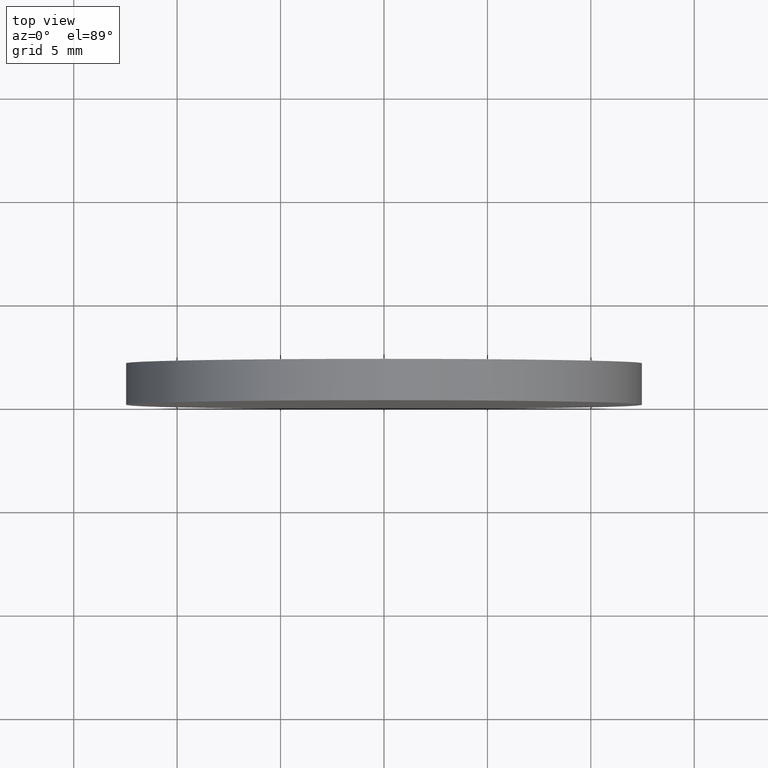
[diagram: clean part render]
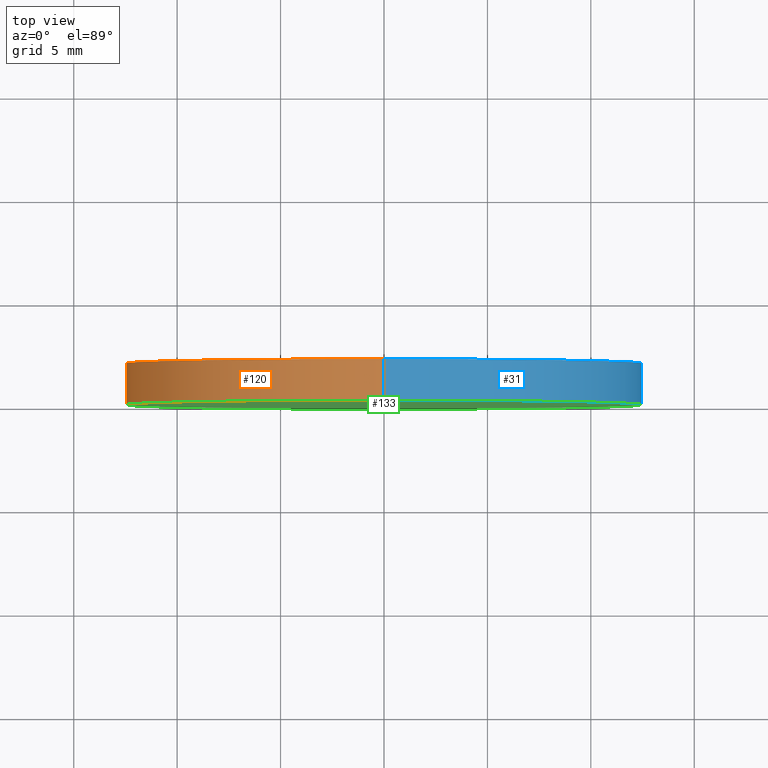
[diagram: same view with three faces highlighted in distinct colors, each labeled with its STEP entity id]
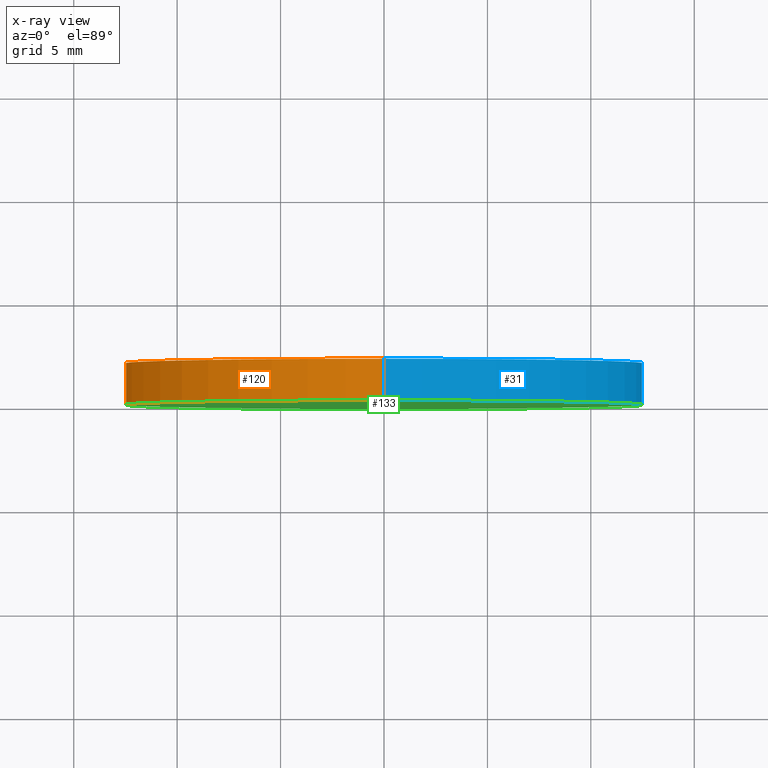
[diagram: x-ray of the same camera — body ghosted, the three highlighted faces saturated]
A machine part, top view with three faces highlighted in distinct colors.
The next image is the same camera in x-ray (body ghosted, the three faces saturated) — at least one of them is partly hidden behind the body in this view.
Their STEP definitions:

[orange] entity #120 — the highlighted cylindrical surface (partial cylindrical patch) has radius 12.5 mm, axis along (-0, -1, -0).
#1 = FACE_OUTER_BOUND ( 'NONE', #89, .T. ) ;
#2 = DIRECTION ( 'NONE',  ( 0.0000000000000000000, 1.000000000000000000, 0.0000000000000000000 ) ) ;
#4 = VERTEX_POINT ( 'NONE', #20 ) ;
#12 = ORIENTED_EDGE ( 'NONE', *, *, #29, .T. ) ;
#13 = DIRECTION ( 'NONE',  ( -0.0000000000000000000, -1.000000000000000000, -0.0000000000000000000 ) ) ;
#19 = EDGE_CURVE ( 'NONE', #124, #113, #129, .T. ) ;
#20 = CARTESIAN_POINT ( 'NONE',  ( 0.0000000000000000000, 0.0000000000000000000, -12.50000000000000000 ) ) ;
#21 = DIRECTION ( 'NONE',  ( 0.0000000000000000000, 0.0000000000000000000, 1.000000000000000000 ) ) ;
#27 = CARTESIAN_POINT ( 'NONE',  ( 1.530808498934191500E-015, 2.000000000000000000, 12.50000000000000000 ) ) ;
#29 = EDGE_CURVE ( 'NONE', #4, #92, #69, .T. ) ;
#32 = DIRECTION ( 'NONE',  ( 0.0000000000000000000, 0.0000000000000000000, -1.000000000000000000 ) ) ;
#42 = CARTESIAN_POINT ( 'NONE',  ( 1.530808498934191500E-015, 0.0000000000000000000, 12.50000000000000000 ) ) ;
#49 = LINE ( 'NONE', #55, #53 ) ;
#53 = VECTOR ( 'NONE', #57, 1000.000000000000000 ) ;
#55 = CARTESIAN_POINT ( 'NONE',  ( 0.0000000000000000000, 2.000000000000000000, -12.50000000000000000 ) ) ;
#56 = CARTESIAN_POINT ( 'NONE',  ( 1.530808498934191500E-015, 2.000000000000000000, 12.50000000000000000 ) ) ;
#57 = DIRECTION ( 'NONE',  ( -0.0000000000000000000, -1.000000000000000000, -0.0000000000000000000 ) ) ;
#59 = ORIENTED_EDGE ( 'NONE', *, *, #108, .T. ) ;
#63 = AXIS2_PLACEMENT_3D ( 'NONE', #77, #2, #65 ) ;
#64 = DIRECTION ( 'NONE',  ( -0.0000000000000000000, -1.000000000000000000, -0.0000000000000000000 ) ) ;
#65 = DIRECTION ( 'NONE',  ( 0.0000000000000000000, 0.0000000000000000000, 1.000000000000000000 ) ) ;
#66 = CYLINDRICAL_SURFACE ( 'NONE', #140, 12.50000000000000000 ) ;
#69 = CIRCLE ( 'NONE', #63, 12.50000000000000000 ) ;
#70 = AXIS2_PLACEMENT_3D ( 'NONE', #84, #94, #21 ) ;
#74 = EDGE_CURVE ( 'NONE', #113, #92, #138, .T. ) ;
#77 = CARTESIAN_POINT ( 'NONE',  ( 0.0000000000000000000, 0.0000000000000000000, 0.0000000000000000000 ) ) ;
#84 = CARTESIAN_POINT ( 'NONE',  ( 0.0000000000000000000, 2.000000000000000000, 0.0000000000000000000 ) ) ;
#89 = EDGE_LOOP ( 'NONE', ( #96, #125, #59, #12 ) ) ;
#92 = VERTEX_POINT ( 'NONE', #42 ) ;
#94 = DIRECTION ( 'NONE',  ( 0.0000000000000000000, 1.000000000000000000, 0.0000000000000000000 ) ) ;
#96 = ORIENTED_EDGE ( 'NONE', *, *, #74, .F. ) ;
#100 = CARTESIAN_POINT ( 'NONE',  ( 0.0000000000000000000, 2.000000000000000000, -12.50000000000000000 ) ) ;
#101 = VECTOR ( 'NONE', #64, 1000.000000000000000 ) ;
#107 = CARTESIAN_POINT ( 'NONE',  ( 0.0000000000000000000, 2.000000000000000000, 0.0000000000000000000 ) ) ;
#108 = EDGE_CURVE ( 'NONE', #124, #4, #49, .T. ) ;
#113 = VERTEX_POINT ( 'NONE', #27 ) ;
#120 = ADVANCED_FACE ( 'NONE', ( #1 ), #66, .T. ) ;
#124 = VERTEX_POINT ( 'NONE', #100 ) ;
#125 = ORIENTED_EDGE ( 'NONE', *, *, #19, .F. ) ;
#129 = CIRCLE ( 'NONE', #70, 12.50000000000000000 ) ;
#138 = LINE ( 'NONE', #56, #101 ) ;
#140 = AXIS2_PLACEMENT_3D ( 'NONE', #107, #13, #32 ) ;

[blue] entity #31 — the highlighted cylindrical surface (partial cylindrical patch) has radius 12.5 mm, axis along (-0, -1, -0).
#4 = VERTEX_POINT ( 'NONE', #20 ) ;
#8 = ORIENTED_EDGE ( 'NONE', *, *, #108, .F. ) ;
#11 = DIRECTION ( 'NONE',  ( 0.0000000000000000000, 0.0000000000000000000, -1.000000000000000000 ) ) ;
#16 = CIRCLE ( 'NONE', #128, 12.50000000000000000 ) ;
#20 = CARTESIAN_POINT ( 'NONE',  ( 0.0000000000000000000, 0.0000000000000000000, -12.50000000000000000 ) ) ;
#24 = DIRECTION ( 'NONE',  ( 0.0000000000000000000, 0.0000000000000000000, 1.000000000000000000 ) ) ;
#27 = CARTESIAN_POINT ( 'NONE',  ( 1.530808498934191500E-015, 2.000000000000000000, 12.50000000000000000 ) ) ;
#31 = ADVANCED_FACE ( 'NONE', ( #38 ), #132, .T. ) ;
#35 = CARTESIAN_POINT ( 'NONE',  ( 0.0000000000000000000, 0.0000000000000000000, 0.0000000000000000000 ) ) ;
#36 = EDGE_LOOP ( 'NONE', ( #51, #91, #46, #8 ) ) ;
#38 = FACE_OUTER_BOUND ( 'NONE', #36, .T. ) ;
#39 = AXIS2_PLACEMENT_3D ( 'NONE', #87, #126, #11 ) ;
#42 = CARTESIAN_POINT ( 'NONE',  ( 1.530808498934191500E-015, 0.0000000000000000000, 12.50000000000000000 ) ) ;
#45 = CARTESIAN_POINT ( 'NONE',  ( 0.0000000000000000000, 2.000000000000000000, 0.0000000000000000000 ) ) ;
#46 = ORIENTED_EDGE ( 'NONE', *, *, #139, .T. ) ;
#47 = DIRECTION ( 'NONE',  ( 0.0000000000000000000, 0.0000000000000000000, 1.000000000000000000 ) ) ;
#49 = LINE ( 'NONE', #55, #53 ) ;
#51 = ORIENTED_EDGE ( 'NONE', *, *, #103, .F. ) ;
#53 = VECTOR ( 'NONE', #57, 1000.000000000000000 ) ;
#55 = CARTESIAN_POINT ( 'NONE',  ( 0.0000000000000000000, 2.000000000000000000, -12.50000000000000000 ) ) ;
#56 = CARTESIAN_POINT ( 'NONE',  ( 1.530808498934191500E-015, 2.000000000000000000, 12.50000000000000000 ) ) ;
#57 = DIRECTION ( 'NONE',  ( -0.0000000000000000000, -1.000000000000000000, -0.0000000000000000000 ) ) ;
#64 = DIRECTION ( 'NONE',  ( -0.0000000000000000000, -1.000000000000000000, -0.0000000000000000000 ) ) ;
#74 = EDGE_CURVE ( 'NONE', #113, #92, #138, .T. ) ;
#82 = CIRCLE ( 'NONE', #112, 12.50000000000000000 ) ;
#87 = CARTESIAN_POINT ( 'NONE',  ( 0.0000000000000000000, 2.000000000000000000, 0.0000000000000000000 ) ) ;
#91 = ORIENTED_EDGE ( 'NONE', *, *, #74, .T. ) ;
#92 = VERTEX_POINT ( 'NONE', #42 ) ;
#100 = CARTESIAN_POINT ( 'NONE',  ( 0.0000000000000000000, 2.000000000000000000, -12.50000000000000000 ) ) ;
#101 = VECTOR ( 'NONE', #64, 1000.000000000000000 ) ;
#103 = EDGE_CURVE ( 'NONE', #113, #124, #82, .T. ) ;
#108 = EDGE_CURVE ( 'NONE', #124, #4, #49, .T. ) ;
#110 = DIRECTION ( 'NONE',  ( 0.0000000000000000000, 1.000000000000000000, 0.0000000000000000000 ) ) ;
#112 = AXIS2_PLACEMENT_3D ( 'NONE', #45, #118, #47 ) ;
#113 = VERTEX_POINT ( 'NONE', #27 ) ;
#118 = DIRECTION ( 'NONE',  ( 0.0000000000000000000, 1.000000000000000000, 0.0000000000000000000 ) ) ;
#124 = VERTEX_POINT ( 'NONE', #100 ) ;
#126 = DIRECTION ( 'NONE',  ( -0.0000000000000000000, -1.000000000000000000, -0.0000000000000000000 ) ) ;
#128 = AXIS2_PLACEMENT_3D ( 'NONE', #35, #110, #24 ) ;
#132 = CYLINDRICAL_SURFACE ( 'NONE', #39, 12.50000000000000000 ) ;
#138 = LINE ( 'NONE', #56, #101 ) ;
#139 = EDGE_CURVE ( 'NONE', #92, #4, #16, .T. ) ;

[green] entity #133 — the highlighted planar face has unit normal (0, 1, 0).
#2 = DIRECTION ( 'NONE',  ( 0.0000000000000000000, 1.000000000000000000, 0.0000000000000000000 ) ) ;
#4 = VERTEX_POINT ( 'NONE', #20 ) ;
#6 = PLANE ( 'NONE',  #7 ) ;
#7 = AXIS2_PLACEMENT_3D ( 'NONE', #25, #83, #136 ) ;
#16 = CIRCLE ( 'NONE', #128, 12.50000000000000000 ) ;
#20 = CARTESIAN_POINT ( 'NONE',  ( 0.0000000000000000000, 0.0000000000000000000, -12.50000000000000000 ) ) ;
#22 = EDGE_LOOP ( 'NONE', ( #67, #73 ) ) ;
#24 = DIRECTION ( 'NONE',  ( 0.0000000000000000000, 0.0000000000000000000, 1.000000000000000000 ) ) ;
#25 = CARTESIAN_POINT ( 'NONE',  ( 0.0000000000000000000, 0.0000000000000000000, 0.0000000000000000000 ) ) ;
#29 = EDGE_CURVE ( 'NONE', #4, #92, #69, .T. ) ;
#35 = CARTESIAN_POINT ( 'NONE',  ( 0.0000000000000000000, 0.0000000000000000000, 0.0000000000000000000 ) ) ;
#42 = CARTESIAN_POINT ( 'NONE',  ( 1.530808498934191500E-015, 0.0000000000000000000, 12.50000000000000000 ) ) ;
#63 = AXIS2_PLACEMENT_3D ( 'NONE', #77, #2, #65 ) ;
#65 = DIRECTION ( 'NONE',  ( 0.0000000000000000000, 0.0000000000000000000, 1.000000000000000000 ) ) ;
#67 = ORIENTED_EDGE ( 'NONE', *, *, #29, .F. ) ;
#69 = CIRCLE ( 'NONE', #63, 12.50000000000000000 ) ;
#73 = ORIENTED_EDGE ( 'NONE', *, *, #139, .F. ) ;
#77 = CARTESIAN_POINT ( 'NONE',  ( 0.0000000000000000000, 0.0000000000000000000, 0.0000000000000000000 ) ) ;
#83 = DIRECTION ( 'NONE',  ( 0.0000000000000000000, 1.000000000000000000, 0.0000000000000000000 ) ) ;
#92 = VERTEX_POINT ( 'NONE', #42 ) ;
#105 = FACE_OUTER_BOUND ( 'NONE', #22, .T. ) ;
#110 = DIRECTION ( 'NONE',  ( 0.0000000000000000000, 1.000000000000000000, 0.0000000000000000000 ) ) ;
#128 = AXIS2_PLACEMENT_3D ( 'NONE', #35, #110, #24 ) ;
#133 = ADVANCED_FACE ( 'NONE', ( #105 ), #6, .F. ) ;
#136 = DIRECTION ( 'NONE',  ( 0.0000000000000000000, -0.0000000000000000000, 1.000000000000000000 ) ) ;
#139 = EDGE_CURVE ( 'NONE', #92, #4, #16, .T. ) ;